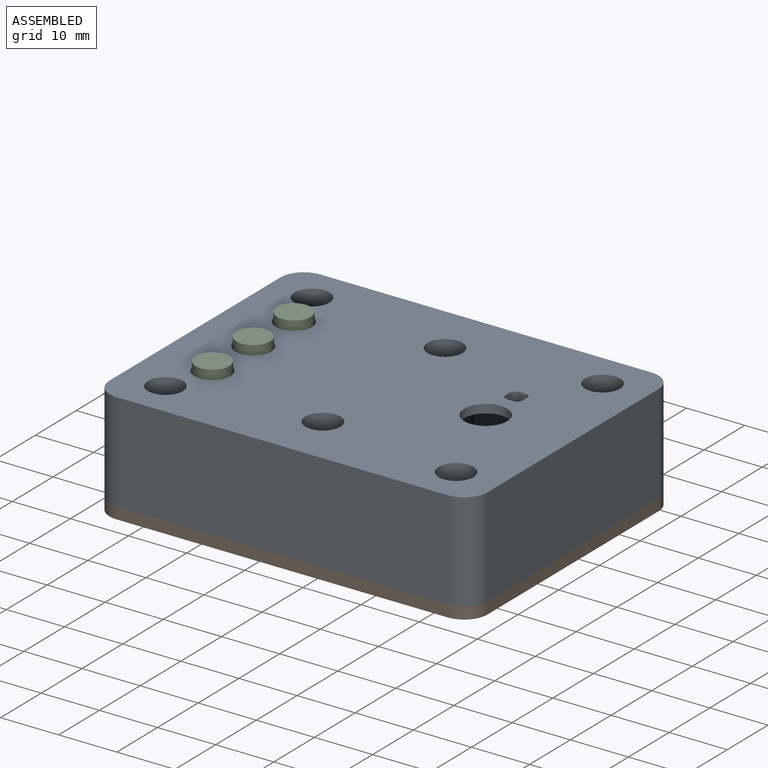
[diagram: assembled view]
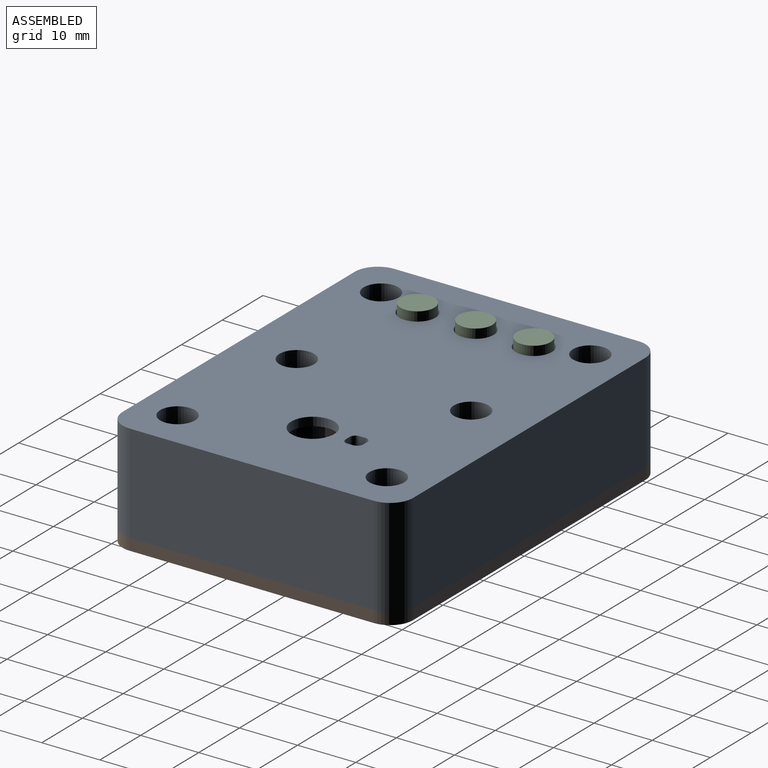
[diagram: assembled view, second angle]
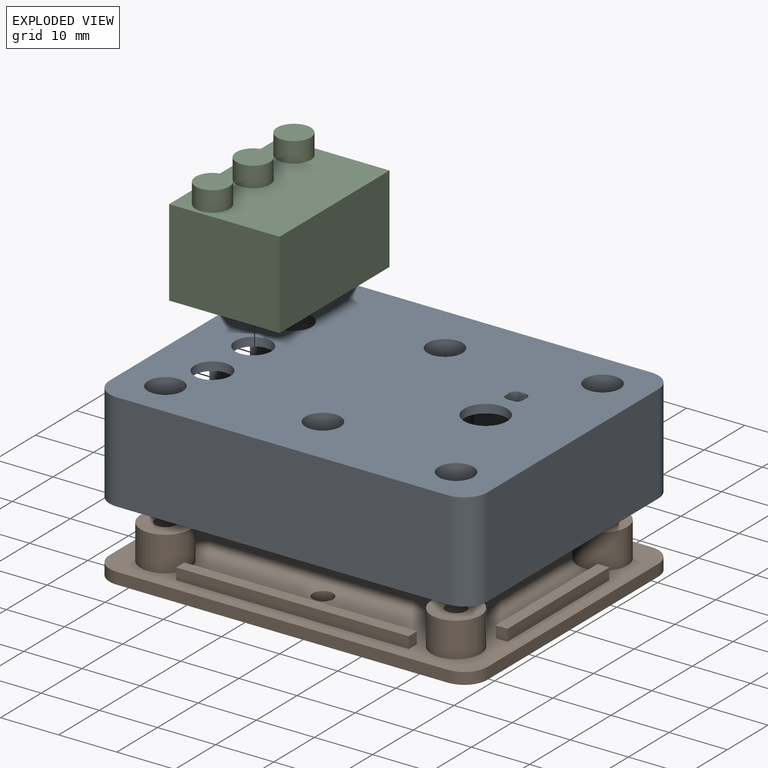
[diagram: exploded view]
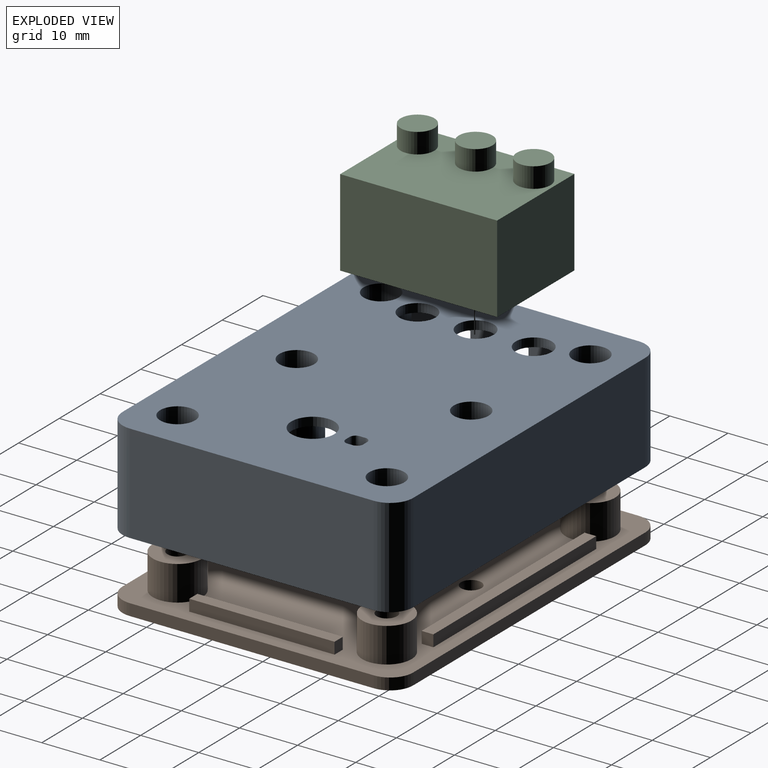
[diagram: exploded view, second angle]
ASSEMBLY  parts=3 mates=2
PART A: 69 faces, bbox 65x50x17 mm
  f0: plane 42x17mm, normal (1,0,0), area 504mm2, adj f3,f18,f19,f20,f21,f22,f23,f24
  f1: plane 42x15.5mm, normal (-1,0,0), area 441mm2, adj f2,f18,f19,f20,f21,f22,f23,f24
  f2: plane 61x46mm, normal (0,0,-1), area 2333.3mm2, adj f1,f7,f8,f9,f10,f11,f12,f13
  f3: plane 65x50mm, normal (0,0,1), area 2924.9mm2, adj f0,f4,f5,f6,f7,f8,f9,f10
  f4: plane 57x17mm, normal (0,1,0), area 969mm2, adj f3,f18,f35,f38
  f5: plane 42x17mm, normal (-1,0,0), area 714mm2, adj f3,f18,f35,f36
  f6: plane 57x17mm, normal (0,-1,0), area 969mm2, adj f3,f18,f36,f37
  f7: cylinder r=3.7mm len=7.4mm, axis (0,0,1), area 34.9mm2, adj f2,f3
  f8: cylinder r=3.1mm len=6.2mm, axis (0,0,1), area 29.2mm2, adj f2,f3
  f9: cylinder r=3.1mm len=6.2mm, axis (0,0,1), area 29.2mm2, adj f2,f3
  f10: cylinder r=3.1mm len=6.2mm, axis (0,0,1), area 29.2mm2, adj f2,f3
  f11: plane 1.5x1mm, normal (0,-1,0), area 1.5mm2, adj f2,f3,f39,f42
  f12: plane 1.5x1mm, normal (1,0,0), area 1.5mm2, adj f2,f3,f39,f40
  f13: plane 1.5x1mm, normal (0,1,0), area 1.5mm2, adj f2,f3,f40,f41
  f14: plane 1.5x1mm, normal (-1,0,0), area 1.5mm2, adj f2,f3,f41,f42
  f15: plane 57x15.5mm, normal (0,-1,0), area 883.5mm2, adj f2,f18,f31,f32
  f16: plane 42x15.5mm, normal (1,0,0), area 651mm2, adj f2,f18,f32,f33
  f17: plane 57x15.5mm, normal (0,1,0), area 883.5mm2, adj f2,f18,f33,f34
  f18: plane 65x50mm, normal (0,0,-1), area 433.7mm2, adj f0,f1,f4,f5,f6,f15,f16,f17
  f19: plane 7x2mm, normal (0,0,-1), area 14mm2, adj f0,f1,f20,f22
  f20: plane 10x2mm, normal (0,1,0), area 20mm2, adj f0,f1,f19,f21
  f21: plane 7x2mm, normal (0,0,1), area 14mm2, adj f0,f1,f20,f22
  f22: plane 10x2mm, normal (0,-1,0), area 20mm2, adj f0,f1,f19,f21
  f23: plane 7x2mm, normal (0,0,1), area 14mm2, adj f0,f1,f24,f26
  f24: plane 10x2mm, normal (0,-1,0), area 20mm2, adj f0,f1,f23,f25
  f25: plane 7x2mm, normal (0,0,-1), area 14mm2, adj f0,f1,f24,f26
  f26: plane 10x2mm, normal (0,1,0), area 20mm2, adj f0,f1,f23,f25
  f27: plane 7x2mm, normal (0,0,-1), area 14mm2, adj f0,f1,f28,f30
  f28: plane 10x2mm, normal (0,1,0), area 20mm2, adj f0,f1,f27,f29
  f29: plane 7x2mm, normal (0,0,1), area 14mm2, adj f0,f1,f28,f30
  f30: plane 10x2mm, normal (0,-1,0), area 20mm2, adj f0,f1,f27,f29
  f31: cylinder r=2mm len=15.5mm, axis (0,0,-1), area 48.7mm2, adj f1,f2,f15,f18
  f32: cylinder r=2mm len=15.5mm, axis (0,0,1), area 48.7mm2, adj f2,f15,f16,f18
  f33: cylinder r=2mm len=15.5mm, axis (0,0,-1), area 48.7mm2, adj f2,f16,f17,f18
  f34: cylinder r=2mm len=15.5mm, axis (0,0,1), area 48.7mm2, adj f1,f2,f17,f18
  f35: cylinder r=4mm len=17mm, axis (0,0,-1), area 106.8mm2, adj f3,f4,f5,f18
  f36: cylinder r=4mm len=17mm, axis (0,0,1), area 106.8mm2, adj f3,f5,f6,f18
  f37: cylinder r=4mm len=17mm, axis (0,0,-1), area 106.8mm2, adj f0,f3,f6,f18
  f38: cylinder r=4mm len=17mm, axis (0,0,1), area 106.8mm2, adj f0,f3,f4,f18
  f39: cylinder r=1mm len=1.5mm, axis (0,0,1), area 2.4mm2, adj f2,f3,f11,f12
  f40: cylinder r=1mm len=1.5mm, axis (0,0,-1), area 2.4mm2, adj f2,f3,f12,f13
  f41: cylinder r=1mm len=1.5mm, axis (0,0,1), area 2.4mm2, adj f2,f3,f13,f14
  f42: cylinder r=1mm len=1.5mm, axis (0,0,-1), area 2.4mm2, adj f2,f3,f11,f14
  f43: cylinder r=4.25mm len=9.5mm, axis (0,0,1), area 253.7mm2, adj f2,f44
  f44: plane 8.5x8.5mm, normal (0,0,-1), area 47.1mm2, adj f43,f60
  f45: cylinder r=4.25mm len=9.5mm, axis (0,0,1), area 253.7mm2, adj f2,f46
  f46: plane 8.5x8.5mm, normal (0,0,-1), area 47.1mm2, adj f45,f57
  f47: cylinder r=4.25mm len=9.5mm, axis (0,0,1), area 253.7mm2, adj f2,f48
  f48: plane 8.5x8.5mm, normal (0,0,-1), area 47.1mm2, adj f47,f54
  f49: cylinder r=4.25mm len=9.5mm, axis (0,0,1), area 253.7mm2, adj f2,f50
  f50: plane 8.5x8.5mm, normal (0,0,-1), area 47.1mm2, adj f49,f51
  f51: cylinder r=1.75mm len=3.5mm, axis (0,0,1), area 22mm2, adj f50,f52
  f52: plane 6x6mm, normal (0,0,1), area 18.7mm2, adj f51,f53
  f53: cylinder r=3mm len=9mm, axis (0,0,1), area 169.6mm2, adj f3,f52
  f54: cylinder r=1.75mm len=3.5mm, axis (0,0,1), area 22mm2, adj f48,f55
  f55: plane 6x6mm, normal (0,0,1), area 18.7mm2, adj f54,f56
  f56: cylinder r=3mm len=9mm, axis (0,0,1), area 169.6mm2, adj f3,f55
  f57: cylinder r=1.75mm len=3.5mm, axis (0,0,1), area 22mm2, adj f46,f58
  f58: plane 6x6mm, normal (0,0,1), area 18.7mm2, adj f57,f59
  f59: cylinder r=3mm len=9mm, axis (0,0,1), area 169.6mm2, adj f3,f58
  f60: cylinder r=1.75mm len=3.5mm, axis (0,0,1), area 22mm2, adj f44,f61
  f61: plane 6x6mm, normal (0,0,1), area 18.7mm2, adj f60,f62
  f62: cylinder r=3mm len=9mm, axis (0,0,1), area 169.6mm2, adj f3,f61
  f63: cylinder r=4mm len=15.5mm, axis (0,0,1), area 389.6mm2, adj f2,f64
  f64: plane 8x8mm, normal (0,0,-1), area 22mm2, adj f63,f68
  f65: cylinder r=4mm len=15.5mm, axis (0,0,1), area 389.6mm2, adj f2,f66
  f66: plane 8x8mm, normal (0,0,-1), area 22mm2, adj f65,f67
  f67: cylinder r=3mm len=17mm, axis (0,0,1), area 320.4mm2, adj f3,f66
  f68: cylinder r=3mm len=17mm, axis (0,0,1), area 320.4mm2, adj f3,f64
PART B: 72 faces, bbox 65x50x8 mm
  f0: plane 65x50mm, normal (0,0,1), area 2730mm2, adj f1,f2,f3,f4,f6,f7,f8,f9
  f1: plane 57x2mm, normal (0,1,0), area 114mm2, adj f0,f5,f6,f9
  f2: plane 42x2mm, normal (-1,0,0), area 84mm2, adj f0,f5,f6,f7
  f3: plane 57x2mm, normal (0,-1,0), area 114mm2, adj f0,f5,f7,f8
  f4: plane 42x2mm, normal (1,0,0), area 84mm2, adj f0,f5,f8,f9
  f5: plane 65x50mm, normal (0,0,-1), area 3104.5mm2, adj f1,f2,f3,f4,f6,f7,f8,f9
  f6: cylinder r=4mm len=4mm, axis (0,0,-1), area 12.6mm2, adj f0,f1,f2,f5
  f7: cylinder r=4mm len=4mm, axis (0,0,1), area 12.6mm2, adj f0,f2,f3,f5
  f8: cylinder r=4mm len=4mm, axis (0,0,-1), area 12.6mm2, adj f0,f3,f4,f5
  f9: cylinder r=4mm len=4mm, axis (0,0,1), area 12.6mm2, adj f0,f1,f4,f5
  f10: plane 40x2mm, normal (0,1,0), area 80mm2, adj f0,f11,f13,f14
  f11: plane 2x2mm, normal (-1,0,0), area 4mm2, adj f0,f10,f12,f14
  f12: plane 40x2mm, normal (0,-1,0), area 80mm2, adj f0,f11,f13,f14
  f13: plane 2x2mm, normal (1,0,0), area 4mm2, adj f0,f10,f12,f14
  f14: plane 40x2mm, normal (0,0,1), area 80mm2, adj f10,f11,f12,f13
  f15: plane 40x2mm, normal (0,1,0), area 80mm2, adj f0,f16,f18,f19
  f16: plane 2x2mm, normal (-1,0,0), area 4mm2, adj f0,f15,f17,f19
  f17: plane 40x2mm, normal (0,-1,0), area 80mm2, adj f0,f16,f18,f19
  f18: plane 2x2mm, normal (1,0,0), area 4mm2, adj f0,f15,f17,f19
  f19: plane 40x2mm, normal (0,0,1), area 80mm2, adj f15,f16,f17,f18
  f20: plane 2x2mm, normal (0,1,0), area 4mm2, adj f0,f21,f23,f24
  f21: plane 25x2mm, normal (-1,0,0), area 50mm2, adj f0,f20,f22,f24
  f22: plane 2x2mm, normal (0,-1,0), area 4mm2, adj f0,f21,f23,f24
  f23: plane 25x2mm, normal (1,0,0), area 50mm2, adj f0,f20,f22,f24
  f24: plane 25x2mm, normal (0,0,1), area 50mm2, adj f20,f21,f22,f23
  f25: plane 2x2mm, normal (0,1,0), area 4mm2, adj f0,f26,f28,f29
  f26: plane 25x2mm, normal (-1,0,0), area 50mm2, adj f0,f25,f27,f29
  f27: plane 2x2mm, normal (0,-1,0), area 4mm2, adj f0,f26,f28,f29
  f28: plane 25x2mm, normal (1,0,0), area 50mm2, adj f0,f25,f27,f29
  f29: plane 25x2mm, normal (0,0,1), area 50mm2, adj f25,f26,f27,f28
  f30: cylinder r=4.25mm len=8.5mm, axis (0,0,-1), area 160.2mm2, adj f0,f31
  f31: plane 8.5x8.5mm, normal (0,0,1), area 47.1mm2, adj f30,f67
  f32: cylinder r=4.25mm len=8.5mm, axis (0,0,-1), area 160.2mm2, adj f0,f33
  f33: plane 8.5x8.5mm, normal (0,0,1), area 47.1mm2, adj f32,f68
  f34: cylinder r=4.25mm len=8.5mm, axis (0,0,-1), area 160.2mm2, adj f0,f35
  f35: plane 8.5x8.5mm, normal (0,0,1), area 47.1mm2, adj f34,f66
  f36: cylinder r=4.25mm len=8.5mm, axis (0,0,-1), area 160.2mm2, adj f0,f37
  f37: plane 8.5x8.5mm, normal (0,0,1), area 47.1mm2, adj f36,f69
  f38: plane 6x2.85mm, normal (0.87,-0.5,0), area 19.7mm2, adj f5,f39,f43,f44
  f39: plane 6x3.29mm, normal (0,-1,0), area 19.7mm2, adj f5,f38,f40,f44
  f40: plane 6x2.85mm, normal (-0.87,-0.5,0), area 19.7mm2, adj f5,f39,f41,f44
  f41: plane 6x2.85mm, normal (-0.87,0.5,0), area 19.7mm2, adj f5,f40,f42,f44
  f42: plane 6x3.29mm, normal (0,1,0), area 19.7mm2, adj f5,f41,f43,f44
  f43: plane 6x2.85mm, normal (0.87,0.5,0), area 19.7mm2, adj f5,f38,f42,f44
  f44: plane 6.58x5.7mm, normal (0,0,-1), area 18.5mm2, adj f38,f39,f40,f41,f42,f43,f69
  f45: plane 6x2.85mm, normal (0.87,-0.5,0), area 19.7mm2, adj f5,f46,f50,f51
  f46: plane 6x3.29mm, normal (0,-1,0), area 19.7mm2, adj f5,f45,f47,f51
  f47: plane 6x2.85mm, normal (-0.87,-0.5,0), area 19.7mm2, adj f5,f46,f48,f51
  f48: plane 6x2.85mm, normal (-0.87,0.5,0), area 19.7mm2, adj f5,f47,f49,f51
  f49: plane 6x3.29mm, normal (0,1,0), area 19.7mm2, adj f5,f48,f50,f51
  f50: plane 6x2.85mm, normal (0.87,0.5,0), area 19.7mm2, adj f5,f45,f49,f51
  f51: plane 6.58x5.7mm, normal (0,0,-1), area 18.5mm2, adj f45,f46,f47,f48,f49,f50,f68
  f52: plane 6x2.85mm, normal (0.87,-0.5,0), area 19.7mm2, adj f5,f53,f57,f58
  f53: plane 6x3.29mm, normal (0,-1,0), area 19.7mm2, adj f5,f52,f54,f58
  f54: plane 6x2.85mm, normal (-0.87,-0.5,0), area 19.7mm2, adj f5,f53,f55,f58
  f55: plane 6x2.85mm, normal (-0.87,0.5,0), area 19.7mm2, adj f5,f54,f56,f58
  f56: plane 6x3.29mm, normal (0,1,0), area 19.7mm2, adj f5,f55,f57,f58
  f57: plane 6x2.85mm, normal (0.87,0.5,0), area 19.7mm2, adj f5,f52,f56,f58
  f58: plane 6.58x5.7mm, normal (0,0,-1), area 18.5mm2, adj f52,f53,f54,f55,f56,f57,f67
  f59: plane 6x2.85mm, normal (0.87,-0.5,0), area 19.7mm2, adj f5,f60,f64,f65
  f60: plane 6x3.29mm, normal (0,-1,0), area 19.7mm2, adj f5,f59,f61,f65
  f61: plane 6x2.85mm, normal (-0.87,-0.5,0), area 19.7mm2, adj f5,f60,f62,f65
  f62: plane 6x2.85mm, normal (-0.87,0.5,0), area 19.7mm2, adj f5,f61,f63,f65
  f63: plane 6x3.29mm, normal (0,1,0), area 19.7mm2, adj f5,f62,f64,f65
  f64: plane 6x2.85mm, normal (0.87,0.5,0), area 19.7mm2, adj f5,f59,f63,f65
  f65: plane 6.58x5.7mm, normal (0,0,-1), area 18.5mm2, adj f59,f60,f61,f62,f63,f64,f66
  f66: cylinder r=1.75mm len=3.5mm, axis (0,0,-1), area 22mm2, adj f35,f65
  f67: cylinder r=1.75mm len=3.5mm, axis (0,0,-1), area 22mm2, adj f31,f58
  f68: cylinder r=1.75mm len=3.5mm, axis (0,0,-1), area 22mm2, adj f33,f51
  f69: cylinder r=1.75mm len=3.5mm, axis (0,0,-1), area 22mm2, adj f37,f44
  f70: cylinder r=1.75mm len=3.5mm, axis (0,0,1), area 22mm2, adj f0,f5
  f71: cylinder r=1.75mm len=3.5mm, axis (0,0,1), area 22mm2, adj f0,f5
PART C: 12 faces, bbox 19x27x18.5 mm
  f0: cylinder r=2.9mm len=5.8mm, axis (0,0,-1), area 63.8mm2, adj f1,f11
  f1: plane 5.8x5.8mm, normal (0,0,1), area 26.4mm2, adj f0
  f2: cylinder r=2.9mm len=5.8mm, axis (0,0,-1), area 63.8mm2, adj f3,f11
  f3: plane 5.8x5.8mm, normal (0,0,1), area 26.4mm2, adj f2
  f4: cylinder r=2.9mm len=5.8mm, axis (0,0,-1), area 63.8mm2, adj f5,f11
  f5: plane 5.8x5.8mm, normal (0,0,1), area 26.4mm2, adj f4
  f6: plane 19x15mm, normal (0,1,0), area 285mm2, adj f7,f9,f10,f11
  f7: plane 27x15mm, normal (-1,0,0), area 405mm2, adj f6,f8,f10,f11
  f8: plane 19x15mm, normal (0,-1,0), area 285mm2, adj f7,f9,f10,f11
  f9: plane 27x15mm, normal (1,0,0), area 405mm2, adj f6,f8,f10,f11
  f10: plane 27x19mm, normal (0,0,-1), area 513mm2, adj f6,f7,f8,f9
  f11: plane 27x19mm, normal (0,0,1), area 433.7mm2, adj f0,f2,f4,f6,f7,f8,f9
PLACE A rot(axis=(0,0,-1),180deg) t=(-4.48,-1.52,3.01)mm
PLACE B rot(axis=(-0.08,0.67,0.73),0deg) t=(-21.98,-1.52,-13.99)mm
PLACE C rot(axis=(-0.08,0.67,0.73),0deg) t=(-44.48,-1.52,1.01)mm
MATE parallel B.f0 <-> A.f66  axis (0,0,1) through (-21.98,-1.52,-13.99)mm
MATE slider C.f2 <-> A.f8  axis (0,0,1) through (-44.48,8.48,4.51)mm
